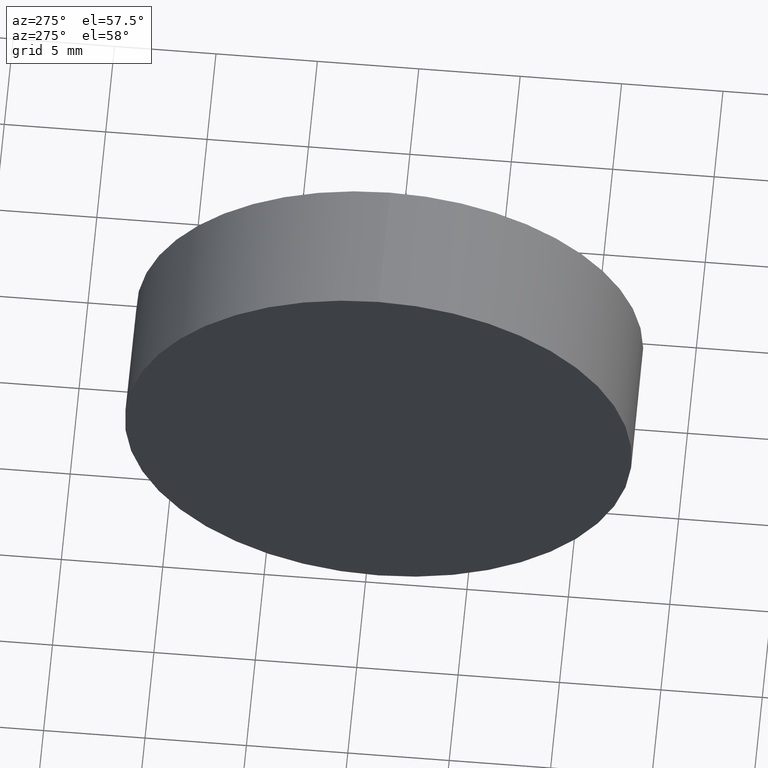
[diagram: clean part render]
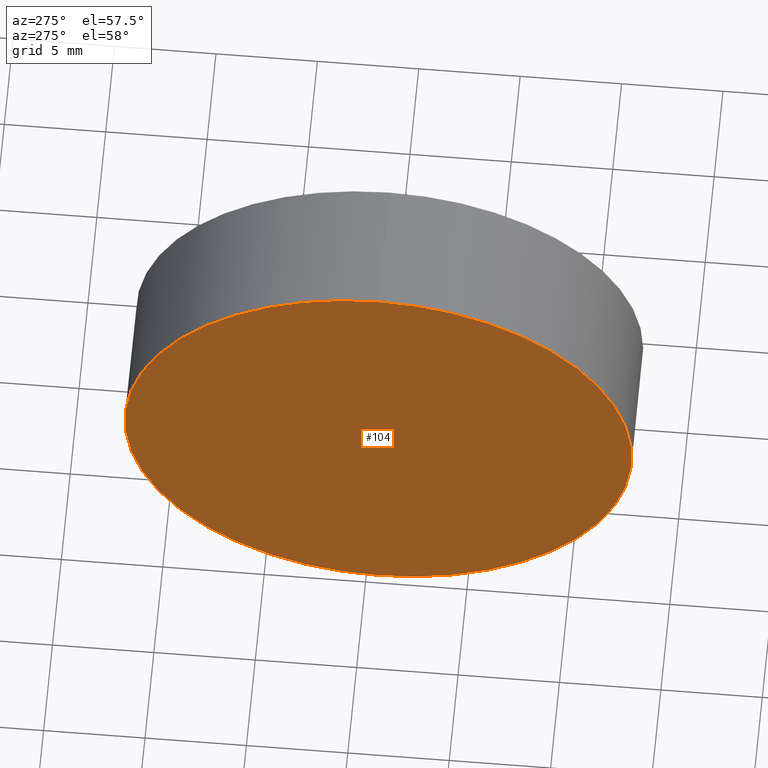
[diagram: same view with one face highlighted and labeled with its STEP entity id]
A machine part, auxiliary view. The second image highlights one B-rep face of the part: STEP entity #104.
In plain terms, the highlighted planar face has unit normal (1, 0, 0).
Its self-contained STEP definition (entity closure, byte-faithful):
#7 = CARTESIAN_POINT ( 'NONE',  ( 115.0926555349195200, 69.37802112337243400, 0.0000000000000000000 ) ) ;
#11 = DIRECTION ( 'NONE',  ( 0.0000000000000000000, 0.0000000000000000000, 1.000000000000000000 ) ) ;
#18 = EDGE_CURVE ( 'NONE', #39, #109, #119, .T. ) ;
#33 = CARTESIAN_POINT ( 'NONE',  ( 115.0926555349195200, 69.37802112337243400, -12.49999999999999600 ) ) ;
#38 = AXIS2_PLACEMENT_3D ( 'NONE', #182, #152, #80 ) ;
#39 = VERTEX_POINT ( 'NONE', #69 ) ;
#45 = AXIS2_PLACEMENT_3D ( 'NONE', #125, #183, #11 ) ;
#49 = EDGE_LOOP ( 'NONE', ( #95, #116 ) ) ;
#55 = CIRCLE ( 'NONE', #38, 12.49999999999999600 ) ;
#69 = CARTESIAN_POINT ( 'NONE',  ( 115.0926555349195200, 69.37802112337243400, 12.49999999999999600 ) ) ;
#80 = DIRECTION ( 'NONE',  ( 0.0000000000000000000, 0.0000000000000000000, 1.000000000000000000 ) ) ;
#95 = ORIENTED_EDGE ( 'NONE', *, *, #18, .T. ) ;
#101 = AXIS2_PLACEMENT_3D ( 'NONE', #7, #121, #138 ) ;
#104 = ADVANCED_FACE ( 'NONE', ( #175 ), #137, .F. ) ;
#109 = VERTEX_POINT ( 'NONE', #33 ) ;
#116 = ORIENTED_EDGE ( 'NONE', *, *, #132, .T. ) ;
#119 = CIRCLE ( 'NONE', #45, 12.49999999999999600 ) ;
#121 = DIRECTION ( 'NONE',  ( 1.000000000000000000, 0.0000000000000000000, 0.0000000000000000000 ) ) ;
#125 = CARTESIAN_POINT ( 'NONE',  ( 115.0926555349195200, 69.37802112337243400, 0.0000000000000000000 ) ) ;
#132 = EDGE_CURVE ( 'NONE', #109, #39, #55, .T. ) ;
#137 = PLANE ( 'NONE',  #101 ) ;
#138 = DIRECTION ( 'NONE',  ( 0.0000000000000000000, 0.0000000000000000000, -1.000000000000000000 ) ) ;
#152 = DIRECTION ( 'NONE',  ( -1.000000000000000000, -0.0000000000000000000, -0.0000000000000000000 ) ) ;
#175 = FACE_OUTER_BOUND ( 'NONE', #49, .T. ) ;
#182 = CARTESIAN_POINT ( 'NONE',  ( 115.0926555349195200, 69.37802112337243400, 0.0000000000000000000 ) ) ;
#183 = DIRECTION ( 'NONE',  ( -1.000000000000000000, -0.0000000000000000000, -0.0000000000000000000 ) ) ;